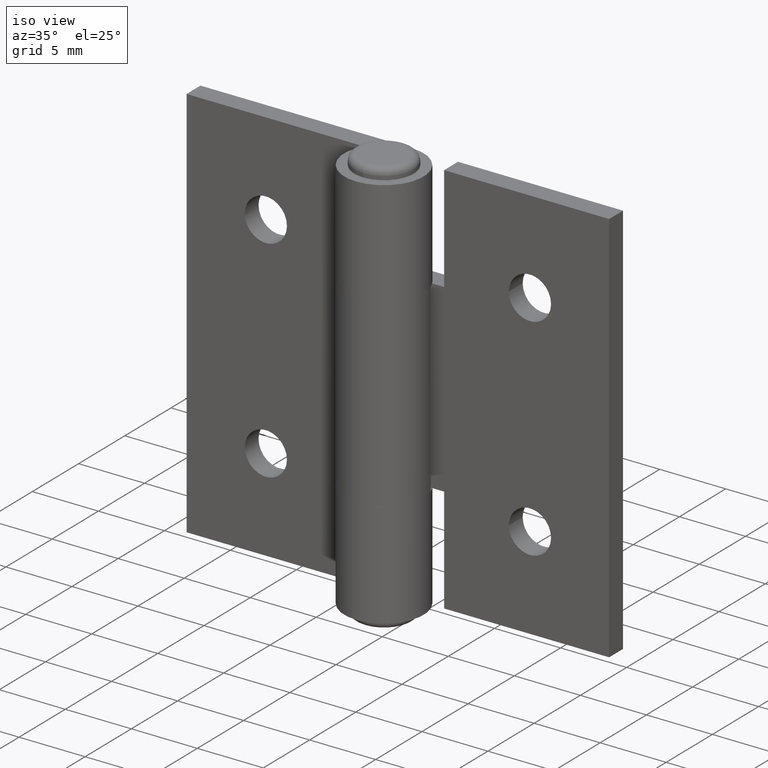
[diagram: clean part render]
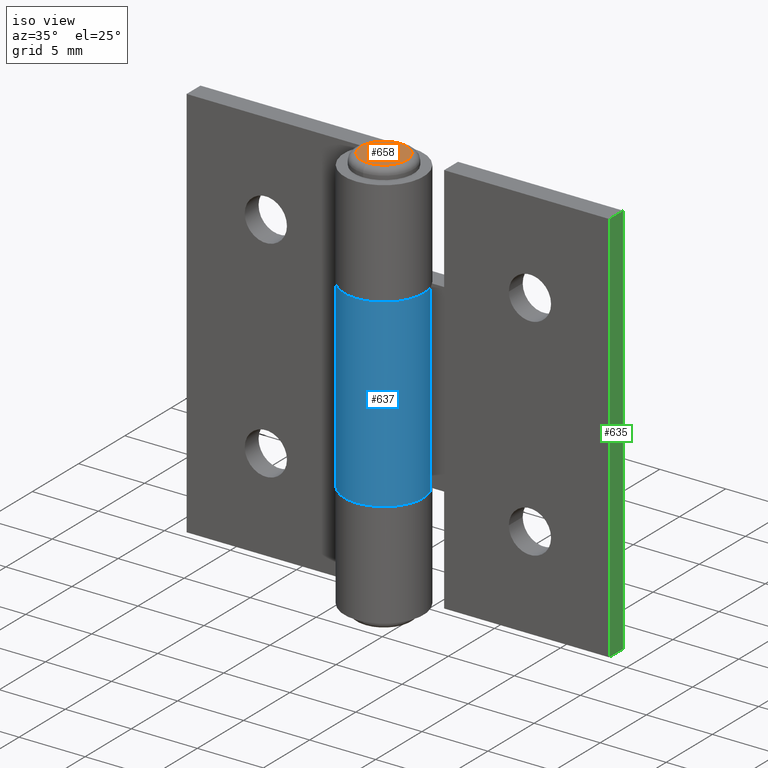
[diagram: same view with three faces highlighted in distinct colors, each labeled with its STEP entity id]
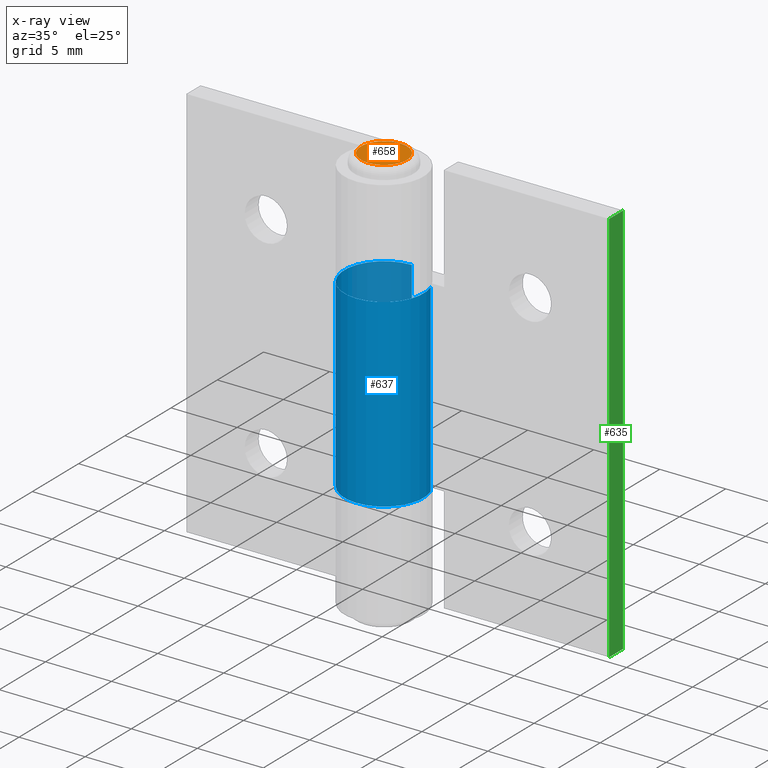
[diagram: x-ray of the same camera — body ghosted, the three highlighted faces saturated]
A machine part, iso view with three faces highlighted in distinct colors.
The next image is the same camera in x-ray (body ghosted, the three faces saturated) — at least one of them is partly hidden behind the body in this view.
Their STEP definitions:

[orange] entity #658 — the highlighted planar face has unit normal (0, 0, 1).
#159=PLANE('',#725);
#214=FACE_OUTER_BOUND('',#267,.T.);
#267=EDGE_LOOP('',(#601));
#300=CIRCLE('',#722,1.75);
#360=VERTEX_POINT('',#1099);
#442=EDGE_CURVE('',#360,#360,#300,.T.);
#601=ORIENTED_EDGE('',*,*,#442,.F.);
#658=ADVANCED_FACE('',(#214),#159,.T.);
#722=AXIS2_PLACEMENT_3D('',#1100,#902,#903);
#725=AXIS2_PLACEMENT_3D('',#1104,#908,#909);
#902=DIRECTION('center_axis',(0.,0.,1.));
#903=DIRECTION('ref_axis',(1.22464679914735E-16,-1.,0.));
#908=DIRECTION('center_axis',(0.,0.,-1.));
#909=DIRECTION('ref_axis',(-1.,0.,0.));
#1099=CARTESIAN_POINT('',(-4.28626379701574E-16,4.75,-15.8));
#1100=CARTESIAN_POINT('Origin',(0.,3.,-15.8));
#1104=CARTESIAN_POINT('Origin',(0.,4.125,-15.8));

[blue] entity #637 — the highlighted cylindrical surface (partial cylindrical patch) has radius 3 mm, axis along (0, 0, 1).
#51=LINE('',#999,#105);
#55=LINE('',#1007,#109);
#105=VECTOR('',#796,14.);
#109=VECTOR('',#806,14.);
#193=FACE_OUTER_BOUND('',#238,.T.);
#238=EDGE_LOOP('',(#505,#506,#507,#508));
#284=CIRCLE('',#678,3.);
#285=CIRCLE('',#680,3.);
#317=VERTEX_POINT('',#963);
#318=VERTEX_POINT('',#965);
#322=VERTEX_POINT('',#974);
#323=VERTEX_POINT('',#976);
#378=EDGE_CURVE('',#318,#317,#284,.T.);
#383=EDGE_CURVE('',#323,#322,#285,.T.);
#395=EDGE_CURVE('',#318,#322,#51,.T.);
#399=EDGE_CURVE('',#317,#323,#55,.T.);
#505=ORIENTED_EDGE('',*,*,#378,.T.);
#506=ORIENTED_EDGE('',*,*,#399,.T.);
#507=ORIENTED_EDGE('',*,*,#383,.T.);
#508=ORIENTED_EDGE('',*,*,#395,.F.);
#615=CYLINDRICAL_SURFACE('',#688,3.);
#637=ADVANCED_FACE('',(#193),#615,.T.);
#678=AXIS2_PLACEMENT_3D('',#966,#766,#767);
#680=AXIS2_PLACEMENT_3D('',#977,#774,#775);
#688=AXIS2_PLACEMENT_3D('',#1006,#804,#805);
#766=DIRECTION('center_axis',(0.,0.,1.));
#767=DIRECTION('ref_axis',(-0.866025403784439,-0.499999999999999,0.));
#774=DIRECTION('center_axis',(0.,0.,-1.));
#775=DIRECTION('ref_axis',(-0.866025403784439,-0.499999999999999,0.));
#796=DIRECTION('',(0.,0.,1.));
#804=DIRECTION('center_axis',(0.,0.,1.));
#805=DIRECTION('ref_axis',(-0.866025403784439,-0.499999999999999,0.));
#806=DIRECTION('',(0.,0.,1.));
#963=CARTESIAN_POINT('',(-2.81907786235773,1.97393957002299,-7.));
#965=CARTESIAN_POINT('',(-5.55111512312578E-16,0.,-7.));
#966=CARTESIAN_POINT('Origin',(-5.55111512312578E-16,3.,-7.));
#974=CARTESIAN_POINT('',(-5.55111512312578E-16,0.,7.));
#976=CARTESIAN_POINT('',(-2.81907786235773,1.97393957002299,7.));
#977=CARTESIAN_POINT('Origin',(-5.55111512312578E-16,3.,7.));
#999=CARTESIAN_POINT('',(-5.55111512312578E-16,0.,0.));
#1006=CARTESIAN_POINT('Origin',(-5.55111512312578E-16,3.,0.));
#1007=CARTESIAN_POINT('',(-2.81907786235773,1.97393957002299,0.));

[green] entity #635 — the highlighted planar face has unit normal (1, 0, 0).
#46=LINE('',#991,#100);
#48=LINE('',#995,#102);
#53=LINE('',#1002,#107);
#54=LINE('',#1004,#108);
#100=VECTOR('',#787,1.5);
#102=VECTOR('',#791,30.);
#107=VECTOR('',#798,30.);
#108=VECTOR('',#801,1.5);
#146=PLANE('',#686);
#191=FACE_OUTER_BOUND('',#236,.T.);
#236=EDGE_LOOP('',(#497,#498,#499,#500));
#327=VERTEX_POINT('',#988);
#328=VERTEX_POINT('',#990);
#329=VERTEX_POINT('',#994);
#330=VERTEX_POINT('',#1000);
#390=EDGE_CURVE('',#327,#328,#46,.T.);
#392=EDGE_CURVE('',#328,#329,#48,.T.);
#397=EDGE_CURVE('',#327,#330,#53,.T.);
#398=EDGE_CURVE('',#329,#330,#54,.T.);
#497=ORIENTED_EDGE('',*,*,#397,.T.);
#498=ORIENTED_EDGE('',*,*,#398,.F.);
#499=ORIENTED_EDGE('',*,*,#392,.F.);
#500=ORIENTED_EDGE('',*,*,#390,.F.);
#635=ADVANCED_FACE('',(#191),#146,.T.);
#686=AXIS2_PLACEMENT_3D('',#1003,#799,#800);
#787=DIRECTION('',(0.,1.,0.));
#791=DIRECTION('',(0.,0.,1.));
#798=DIRECTION('',(0.,0.,1.));
#799=DIRECTION('center_axis',(-1.,0.,0.));
#800=DIRECTION('ref_axis',(0.,-1.,0.));
#801=DIRECTION('',(0.,-1.,0.));
#988=CARTESIAN_POINT('',(-16.,0.,-15.));
#990=CARTESIAN_POINT('',(-16.,1.5,-15.));
#991=CARTESIAN_POINT('',(-16.,1.5,-15.));
#994=CARTESIAN_POINT('',(-16.,1.5,15.));
#995=CARTESIAN_POINT('',(-16.,1.5,0.));
#1000=CARTESIAN_POINT('',(-16.,0.,15.));
#1002=CARTESIAN_POINT('',(-16.,0.,0.));
#1003=CARTESIAN_POINT('Origin',(-16.,1.5,0.));
#1004=CARTESIAN_POINT('',(-16.,1.5,15.));